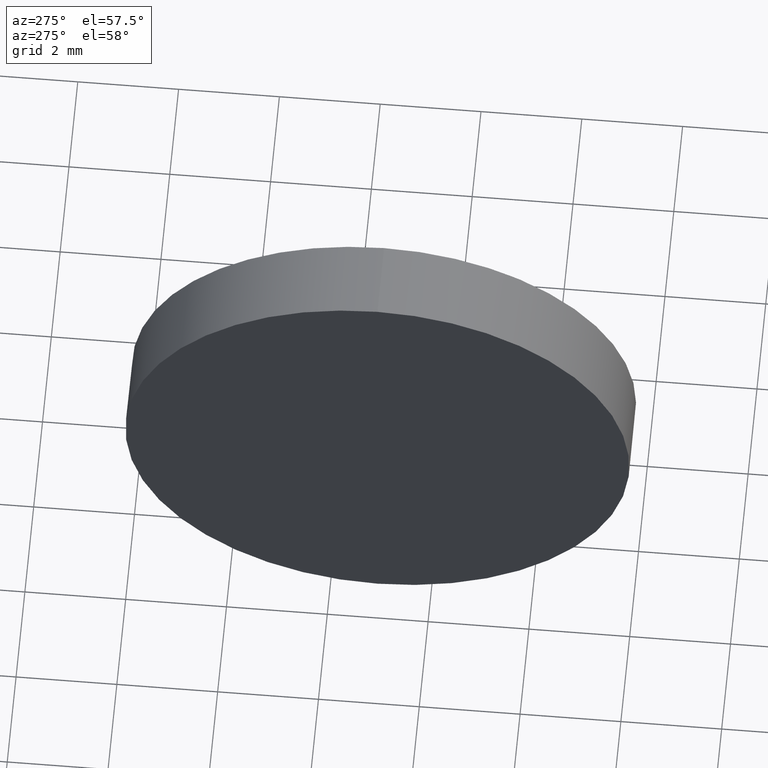
[diagram: clean part render]
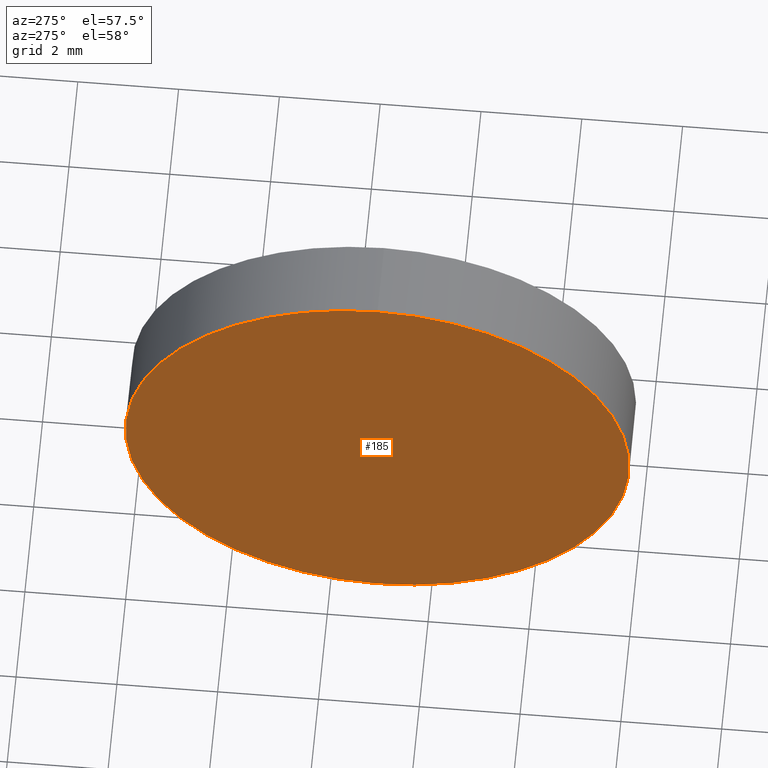
[diagram: same view with one face highlighted and labeled with its STEP entity id]
A machine part, auxiliary view. The second image highlights one B-rep face of the part: STEP entity #185.
In plain terms, the highlighted planar face has unit normal (1, 0, 0).
Its self-contained STEP definition (entity closure, byte-faithful):
#9 = DIRECTION ( 'NONE',  ( -1.000000000000000000, -0.0000000000000000000, -0.0000000000000000000 ) ) ;
#11 = AXIS2_PLACEMENT_3D ( 'NONE', #77, #184, #106 ) ;
#14 = PLANE ( 'NONE',  #11 ) ;
#15 = CARTESIAN_POINT ( 'NONE',  ( 364.6618154651758900, 37.06401895449352000, 0.0000000000000000000 ) ) ;
#28 = DIRECTION ( 'NONE',  ( -1.000000000000000000, -0.0000000000000000000, -0.0000000000000000000 ) ) ;
#32 = CARTESIAN_POINT ( 'NONE',  ( 364.6618154651758900, 37.06401895449352000, -4.999999999999997300 ) ) ;
#33 = ORIENTED_EDGE ( 'NONE', *, *, #36, .T. ) ;
#36 = EDGE_CURVE ( 'NONE', #149, #99, #89, .T. ) ;
#47 = AXIS2_PLACEMENT_3D ( 'NONE', #117, #28, #154 ) ;
#63 = CARTESIAN_POINT ( 'NONE',  ( 364.6618154651758900, 37.06401895449352000, 4.999999999999997300 ) ) ;
#67 = DIRECTION ( 'NONE',  ( 0.0000000000000000000, 0.0000000000000000000, 1.000000000000000000 ) ) ;
#71 = CIRCLE ( 'NONE', #83, 4.999999999999997300 ) ;
#77 = CARTESIAN_POINT ( 'NONE',  ( 364.6618154651758900, 37.06401895449352000, 0.0000000000000000000 ) ) ;
#83 = AXIS2_PLACEMENT_3D ( 'NONE', #15, #9, #67 ) ;
#89 = CIRCLE ( 'NONE', #47, 4.999999999999997300 ) ;
#99 = VERTEX_POINT ( 'NONE', #63 ) ;
#100 = EDGE_LOOP ( 'NONE', ( #170, #33 ) ) ;
#106 = DIRECTION ( 'NONE',  ( 0.0000000000000000000, 0.0000000000000000000, -1.000000000000000000 ) ) ;
#113 = FACE_OUTER_BOUND ( 'NONE', #100, .T. ) ;
#117 = CARTESIAN_POINT ( 'NONE',  ( 364.6618154651758900, 37.06401895449352000, 0.0000000000000000000 ) ) ;
#149 = VERTEX_POINT ( 'NONE', #32 ) ;
#154 = DIRECTION ( 'NONE',  ( 0.0000000000000000000, 0.0000000000000000000, 1.000000000000000000 ) ) ;
#170 = ORIENTED_EDGE ( 'NONE', *, *, #174, .T. ) ;
#174 = EDGE_CURVE ( 'NONE', #99, #149, #71, .T. ) ;
#184 = DIRECTION ( 'NONE',  ( 1.000000000000000000, 0.0000000000000000000, 0.0000000000000000000 ) ) ;
#185 = ADVANCED_FACE ( 'NONE', ( #113 ), #14, .F. ) ;